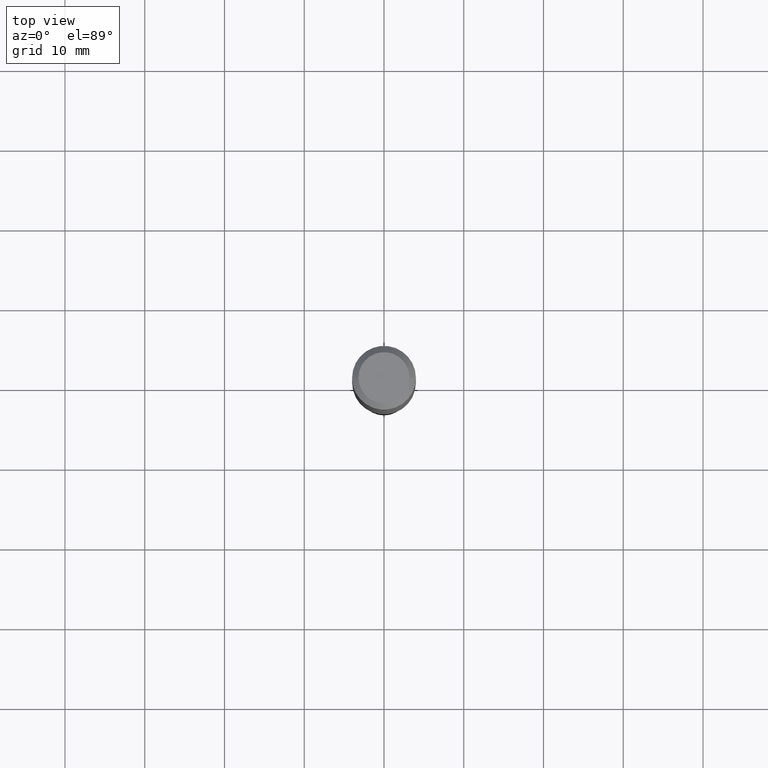
[diagram: clean part render]
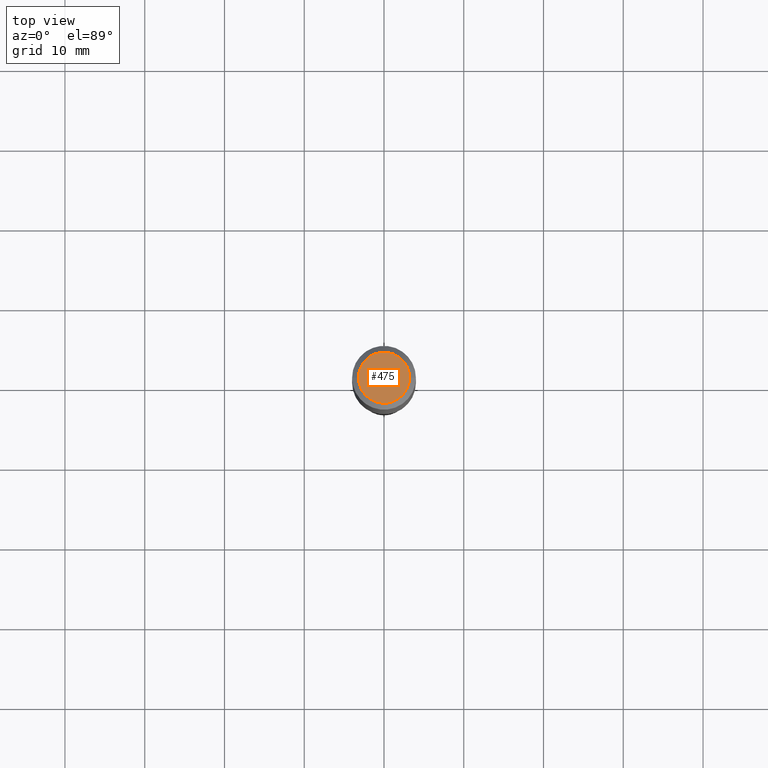
[diagram: same view with one face highlighted and labeled with its STEP entity id]
A machine part, top view. The second image highlights one B-rep face of the part: STEP entity #475.
In plain terms, the highlighted planar face has unit normal (0, -0, -1).
Its self-contained STEP definition (entity closure, byte-faithful):
#7 = AXIS2_PLACEMENT_3D ( 'NONE', #308, #453, #195 ) ;
#23 = AXIS2_PLACEMENT_3D ( 'NONE', #465, #331, #98 ) ;
#48 = VERTEX_POINT ( 'NONE', #204 ) ;
#63 = EDGE_LOOP ( 'NONE', ( #277, #149 ) ) ;
#65 = CIRCLE ( 'NONE', #23, 0.1260000000000000009 ) ;
#77 = FACE_OUTER_BOUND ( 'NONE', #63, .T. ) ;
#92 = AXIS2_PLACEMENT_3D ( 'NONE', #420, #385, #312 ) ;
#98 = DIRECTION ( 'NONE',  ( 1.000000000000000000, -6.982962677686265922E-15, 4.876281427513067258E-29 ) ) ;
#117 = CARTESIAN_POINT ( 'NONE',  ( -0.1260000000000000009, 9.348441284752484904E-16, 3.860086710906114178E-18 ) ) ;
#149 = ORIENTED_EDGE ( 'NONE', *, *, #207, .T. ) ;
#193 = PLANE ( 'NONE',  #92 ) ;
#195 = DIRECTION ( 'NONE',  ( 1.000000000000000000, -6.982962677686265922E-15, 4.876281427513067258E-29 ) ) ;
#204 = CARTESIAN_POINT ( 'NONE',  ( 0.1260000000000000009, -1.027466422270894443E-15, 3.860086710919128072E-18 ) ) ;
#207 = EDGE_CURVE ( 'NONE', #48, #406, #65, .T. ) ;
#277 = ORIENTED_EDGE ( 'NONE', *, *, #447, .T. ) ;
#308 = CARTESIAN_POINT ( 'NONE',  ( -9.439721640706201686E-47, 1.347742071746726764E-32, 3.860086710912459732E-18 ) ) ;
#312 = DIRECTION ( 'NONE',  ( -1.000000000000000000, 6.982962677686265922E-15, -4.876176775795935793E-29 ) ) ;
#331 = DIRECTION ( 'NONE',  ( -2.445468806185136597E-29, 3.491481338843145583E-15, 1.000000000000000000 ) ) ;
#385 = DIRECTION ( 'NONE',  ( 2.438088387897960049E-29, -3.491481338843145188E-15, -1.000000000000000000 ) ) ;
#406 = VERTEX_POINT ( 'NONE', #117 ) ;
#420 = CARTESIAN_POINT ( 'NONE',  ( -4.719860820353100843E-47, 6.738710358733633822E-33, 1.930043355456229866E-18 ) ) ;
#447 = EDGE_CURVE ( 'NONE', #406, #48, #451, .T. ) ;
#451 = CIRCLE ( 'NONE', #7, 0.1260000000000000009 ) ;
#453 = DIRECTION ( 'NONE',  ( -2.445468806185136597E-29, 3.491481338843145583E-15, 1.000000000000000000 ) ) ;
#465 = CARTESIAN_POINT ( 'NONE',  ( -9.439721640706201686E-47, 1.347742071746726764E-32, 3.860086710912459732E-18 ) ) ;
#475 = ADVANCED_FACE ( 'NONE', ( #77 ), #193, .F. ) ;